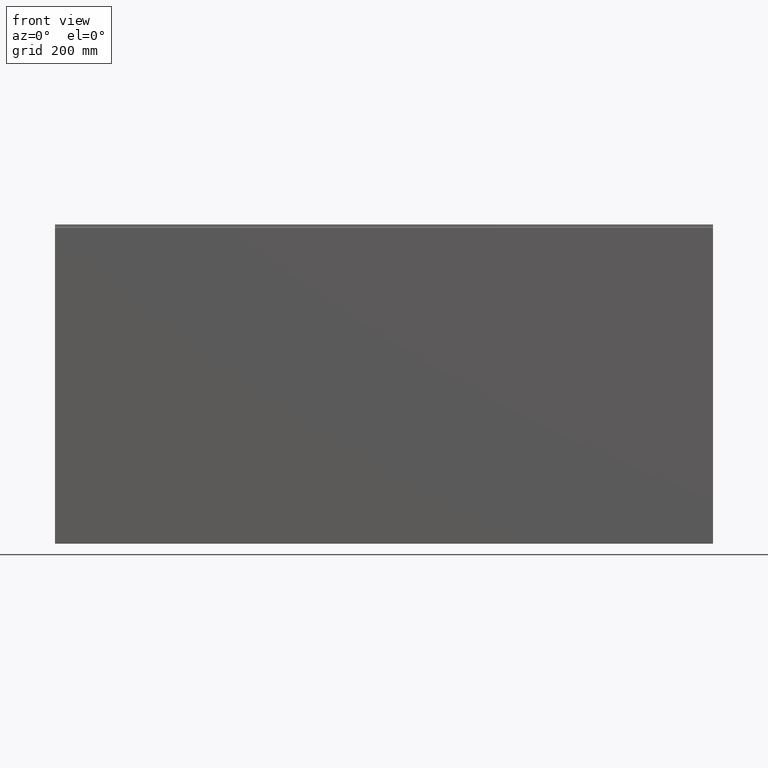
[diagram: clean part render]
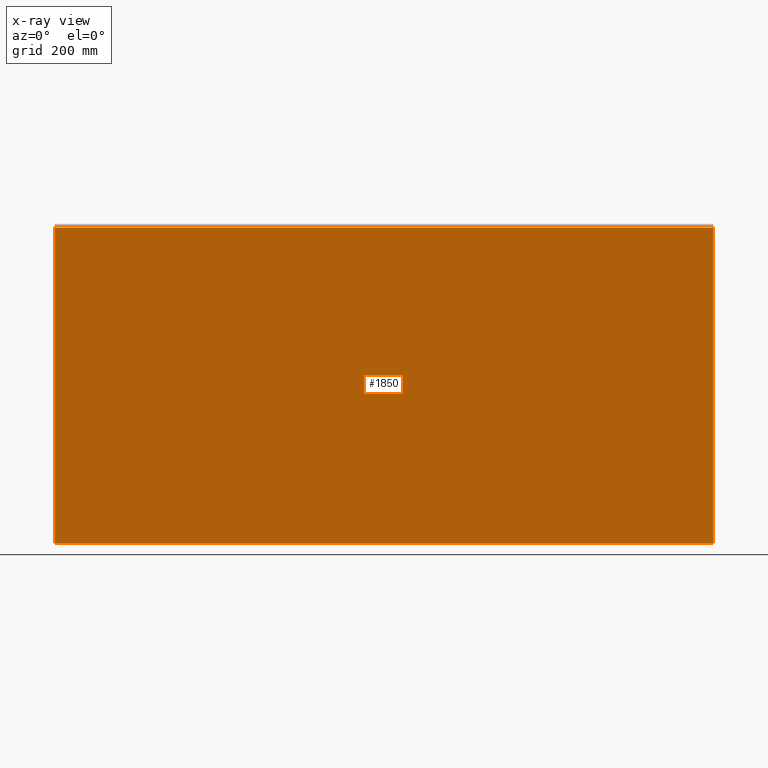
[diagram: x-ray — body ghosted, one internal face saturated and labeled with its STEP entity id]
A machine part, front view, then the same camera in x-ray: the body is ghosted and one INTERNAL B-rep face — a face not visible from any outside direction — is saturated and labeled: STEP entity #1850.
In plain terms, the highlighted planar face has unit normal (0, 1, 0).
Its self-contained STEP definition (entity closure, byte-faithful):
#54 = ORIENTED_EDGE ( 'NONE', *, *, #588, .T. ) ;
#56 = LINE ( 'NONE', #242, #337 ) ;
#87 = DIRECTION ( 'NONE',  ( 0.000000000000000000, 1.000000000000000000, 0.000000000000000000 ) ) ;
#196 = LINE ( 'NONE', #839, #1343 ) ;
#242 = CARTESIAN_POINT ( 'NONE',  ( 1199.999999999999773, -24.55000000000000071, 573.0000000000000000 ) ) ;
#279 = DIRECTION ( 'NONE',  ( 0.000000000000000000, 0.000000000000000000, -1.000000000000000000 ) ) ;
#330 = DIRECTION ( 'NONE',  ( 0.000000000000000000, 0.000000000000000000, 1.000000000000000000 ) ) ;
#337 = VECTOR ( 'NONE', #279, 1000.000000000000000 ) ;
#352 = VERTEX_POINT ( 'NONE', #2331 ) ;
#548 = PLANE ( 'NONE',  #2395 ) ;
#588 = EDGE_CURVE ( 'NONE', #352, #1223, #1591, .T. ) ;
#627 = CARTESIAN_POINT ( 'NONE',  ( 1199.999999999999773, -24.55000000000000071, -579.9999999999998863 ) ) ;
#839 = CARTESIAN_POINT ( 'NONE',  ( 1199.999999999999773, -24.55000000000019611, 570.0000000000001137 ) ) ;
#904 = ORIENTED_EDGE ( 'NONE', *, *, #1536, .F. ) ;
#933 = FACE_OUTER_BOUND ( 'NONE', #2266, .T. ) ;
#1058 = ORIENTED_EDGE ( 'NONE', *, *, #1684, .T. ) ;
#1118 = CARTESIAN_POINT ( 'NONE',  ( 1199.999999999999773, -24.55000000000000071, 570.0000000000001137 ) ) ;
#1216 = EDGE_CURVE ( 'NONE', #1501, #352, #2675, .T. ) ;
#1220 = CARTESIAN_POINT ( 'NONE',  ( 1199.999999999999773, -24.55000000000000071, -579.9999999999998863 ) ) ;
#1223 = VERTEX_POINT ( 'NONE', #2072 ) ;
#1343 = VECTOR ( 'NONE', #2274, 1000.000000000000000 ) ;
#1397 = DIRECTION ( 'NONE',  ( 0.000000000000000000, 0.000000000000000000, -1.000000000000000000 ) ) ;
#1501 = VERTEX_POINT ( 'NONE', #627 ) ;
#1536 = EDGE_CURVE ( 'NONE', #2339, #1223, #196, .T. ) ;
#1550 = VECTOR ( 'NONE', #330, 1000.000000000000000 ) ;
#1591 = LINE ( 'NONE', #2206, #1550 ) ;
#1676 = ORIENTED_EDGE ( 'NONE', *, *, #1216, .T. ) ;
#1684 = EDGE_CURVE ( 'NONE', #2339, #1501, #56, .T. ) ;
#1733 = VECTOR ( 'NONE', #2061, 1000.000000000000000 ) ;
#1850 = ADVANCED_FACE ( 'NONE', ( #933 ), #548, .T. ) ;
#2001 = CARTESIAN_POINT ( 'NONE',  ( 0.000000000000000000, -24.55000000000000071, 0.000000000000000000 ) ) ;
#2061 = DIRECTION ( 'NONE',  ( -1.000000000000000000, -0.000000000000000000, -0.000000000000000000 ) ) ;
#2072 = CARTESIAN_POINT ( 'NONE',  ( -1200.000000000000227, -24.55000000000000071, 570.0000000000001137 ) ) ;
#2206 = CARTESIAN_POINT ( 'NONE',  ( -1200.000000000000227, -24.55000000000000071, 573.0000000000000000 ) ) ;
#2266 = EDGE_LOOP ( 'NONE', ( #904, #1058, #1676, #54 ) ) ;
#2274 = DIRECTION ( 'NONE',  ( -1.000000000000000000, -0.000000000000000000, -0.000000000000000000 ) ) ;
#2331 = CARTESIAN_POINT ( 'NONE',  ( -1200.000000000000227, -24.55000000000000071, -579.9999999999998863 ) ) ;
#2339 = VERTEX_POINT ( 'NONE', #1118 ) ;
#2395 = AXIS2_PLACEMENT_3D ( 'NONE', #2001, #87, #1397 ) ;
#2675 = LINE ( 'NONE', #1220, #1733 ) ;